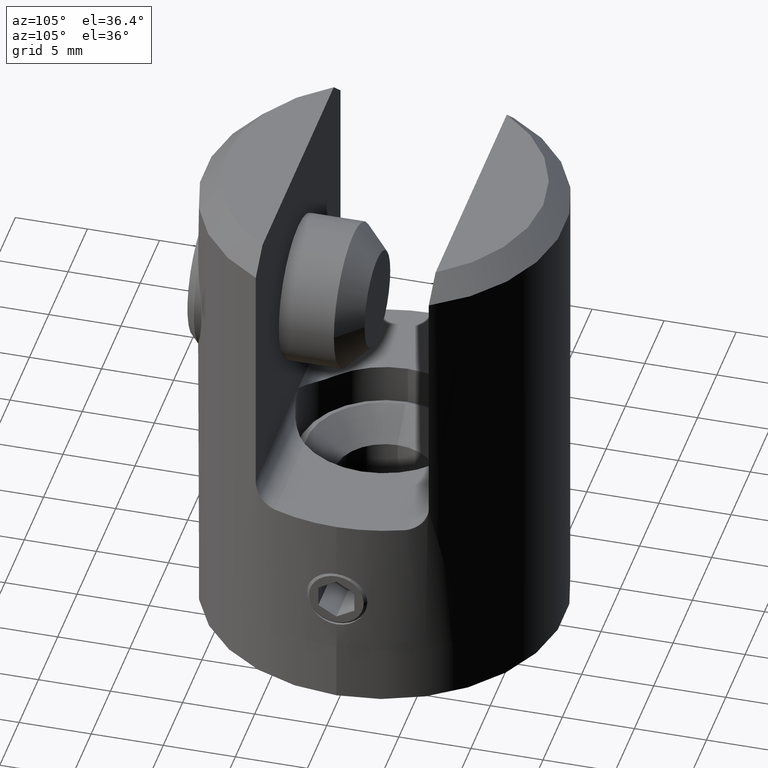
[diagram: clean part render]
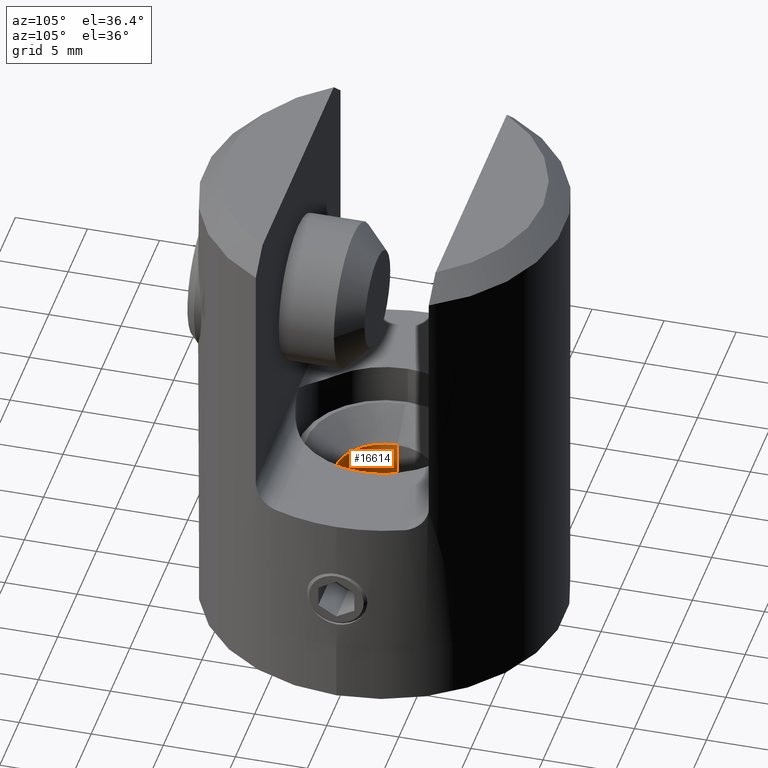
[diagram: same view with one face highlighted and labeled with its STEP entity id]
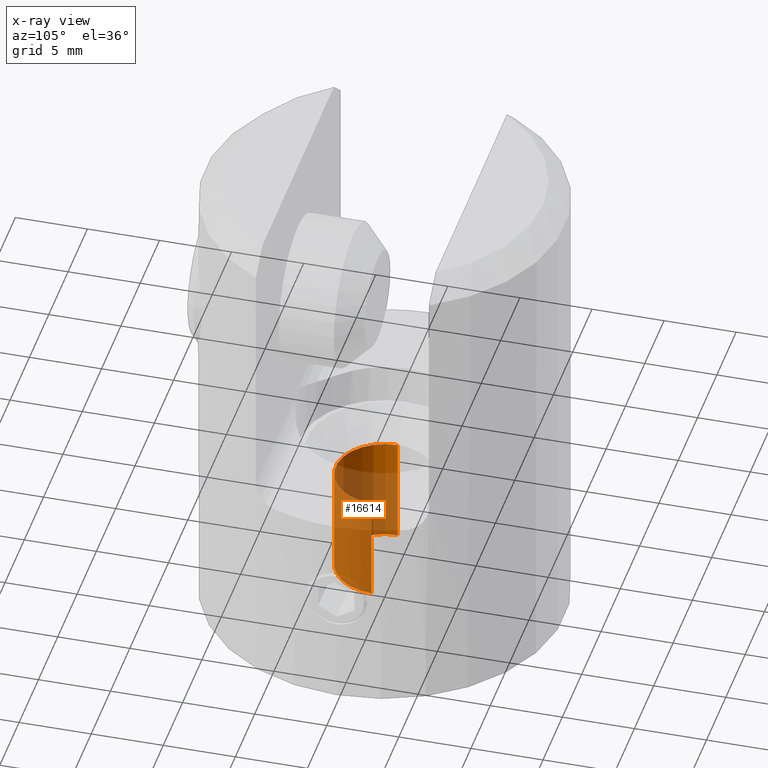
[diagram: x-ray of the same camera — body ghosted, the highlighted face saturated]
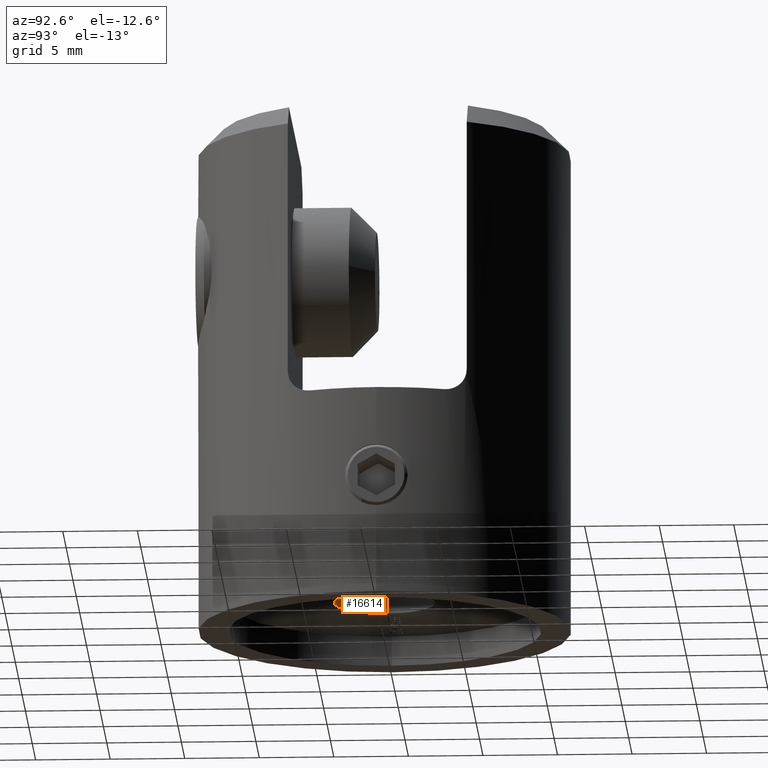
[diagram: same view with one face highlighted and labeled with its STEP entity id]
A machine part, auxiliary view. The second image highlights one B-rep face of the part: STEP entity #16614.
The next image is the same camera in x-ray: the body ghosted, the highlighted face saturated — about 81% of this face is hidden behind the body in this view.
A second angle (auxiliary view) of the same face is appended — the face is thin or edge-on in the first view.
In plain terms, the highlighted cylindrical surface (partial cylindrical patch) has radius 3.4 mm, axis along (0, 0, 1).
Its self-contained STEP definition (entity closure, byte-faithful):
#163 = DIRECTION ( 'NONE',  ( 1.000000000000000000, 0.000000000000000000, 0.000000000000000000 ) ) ;
#1296 = CARTESIAN_POINT ( 'NONE',  ( 3.399999999999999911, 0.000000000000000000, 5.749999999999997335 ) ) ;
#1699 = ORIENTED_EDGE ( 'NONE', *, *, #28356, .T. ) ;
#1813 = EDGE_CURVE ( 'NONE', #19875, #19372, #8474, .T. ) ;
#2321 = CARTESIAN_POINT ( 'NONE',  ( -3.400000000000000799, 4.163799117101001545E-16, -3.750000000000002665 ) ) ;
#3083 = AXIS2_PLACEMENT_3D ( 'NONE', #7012, #22608, #163 ) ;
#4057 = CARTESIAN_POINT ( 'NONE',  ( -3.399999999999999911, 4.163799117101000559E-16, 5.749999999999997335 ) ) ;
#4939 = CARTESIAN_POINT ( 'NONE',  ( 3.399999999999999467, 0.000000000000000000, 3.749999999999997335 ) ) ;
#5667 = EDGE_LOOP ( 'NONE', ( #13394, #21442, #1699, #15576 ) ) ;
#7012 = CARTESIAN_POINT ( 'NONE',  ( 0.000000000000000000, 0.000000000000000000, 3.749999999999997335 ) ) ;
#8357 = EDGE_CURVE ( 'NONE', #27979, #10034, #9959, .T. ) ;
#8474 = LINE ( 'NONE', #4057, #17881 ) ;
#9959 = LINE ( 'NONE', #1296, #31217 ) ;
#10034 = VERTEX_POINT ( 'NONE', #4939 ) ;
#10824 = DIRECTION ( 'NONE',  ( -0.000000000000000000, -0.000000000000000000, 1.000000000000000000 ) ) ;
#10876 = FACE_OUTER_BOUND ( 'NONE', #5667, .T. ) ;
#10932 = EDGE_CURVE ( 'NONE', #19875, #27979, #24335, .T. ) ;
#11375 = DIRECTION ( 'NONE',  ( -0.000000000000000000, -0.000000000000000000, 1.000000000000000000 ) ) ;
#12926 = CIRCLE ( 'NONE', #3083, 3.399999999999999467 ) ;
#13262 = CYLINDRICAL_SURFACE ( 'NONE', #14584, 3.399999999999999911 ) ;
#13394 = ORIENTED_EDGE ( 'NONE', *, *, #10932, .F. ) ;
#14584 = AXIS2_PLACEMENT_3D ( 'NONE', #25458, #10824, #23034 ) ;
#15576 = ORIENTED_EDGE ( 'NONE', *, *, #8357, .F. ) ;
#16614 = ADVANCED_FACE ( 'NONE', ( #10876 ), #13262, .F. ) ;
#17389 = CARTESIAN_POINT ( 'NONE',  ( -3.399999999999999467, 5.388445916248357957E-16, 3.749999999999997335 ) ) ;
#17881 = VECTOR ( 'NONE', #11375, 1000.000000000000000 ) ;
#18888 = DIRECTION ( 'NONE',  ( -0.000000000000000000, -0.000000000000000000, 1.000000000000000000 ) ) ;
#19372 = VERTEX_POINT ( 'NONE', #17389 ) ;
#19875 = VERTEX_POINT ( 'NONE', #2321 ) ;
#20318 = DIRECTION ( 'NONE',  ( 1.000000000000000000, 0.000000000000000000, 0.000000000000000000 ) ) ;
#21442 = ORIENTED_EDGE ( 'NONE', *, *, #1813, .T. ) ;
#22608 = DIRECTION ( 'NONE',  ( -0.000000000000000000, -0.000000000000000000, 1.000000000000000000 ) ) ;
#23034 = DIRECTION ( 'NONE',  ( 1.000000000000000000, 0.000000000000000000, 0.000000000000000000 ) ) ;
#24335 = CIRCLE ( 'NONE', #31743, 3.400000000000000355 ) ;
#25364 = DIRECTION ( 'NONE',  ( -0.000000000000000000, -0.000000000000000000, 1.000000000000000000 ) ) ;
#25458 = CARTESIAN_POINT ( 'NONE',  ( 0.000000000000000000, 0.000000000000000000, 5.749999999999997335 ) ) ;
#25695 = CARTESIAN_POINT ( 'NONE',  ( 0.000000000000000000, 0.000000000000000000, -3.750000000000002665 ) ) ;
#26505 = CARTESIAN_POINT ( 'NONE',  ( 3.400000000000000355, 0.000000000000000000, -3.750000000000002665 ) ) ;
#27979 = VERTEX_POINT ( 'NONE', #26505 ) ;
#28356 = EDGE_CURVE ( 'NONE', #19372, #10034, #12926, .T. ) ;
#31217 = VECTOR ( 'NONE', #18888, 1000.000000000000000 ) ;
#31743 = AXIS2_PLACEMENT_3D ( 'NONE', #25695, #25364, #20318 ) ;